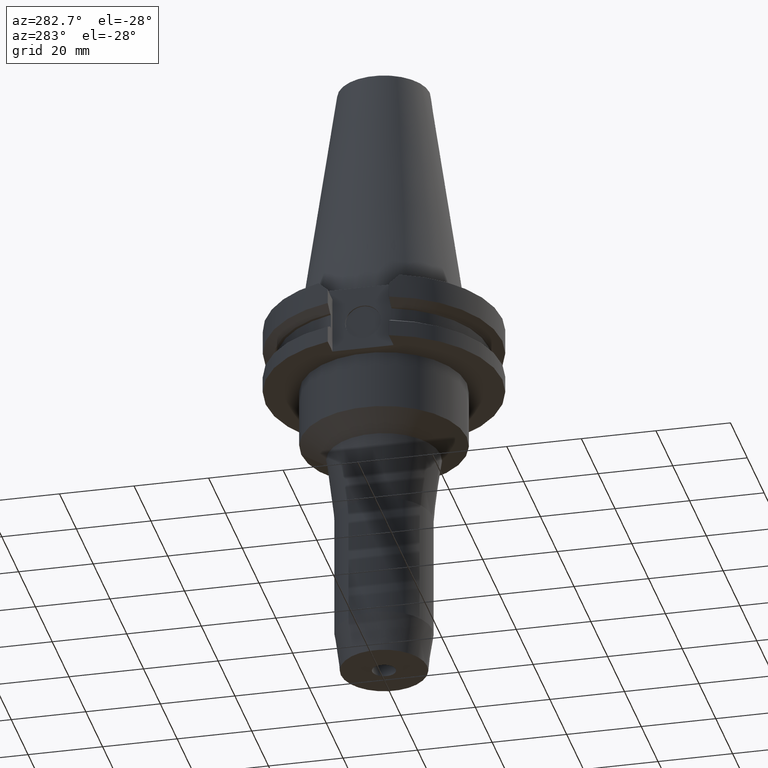
[diagram: clean part render]
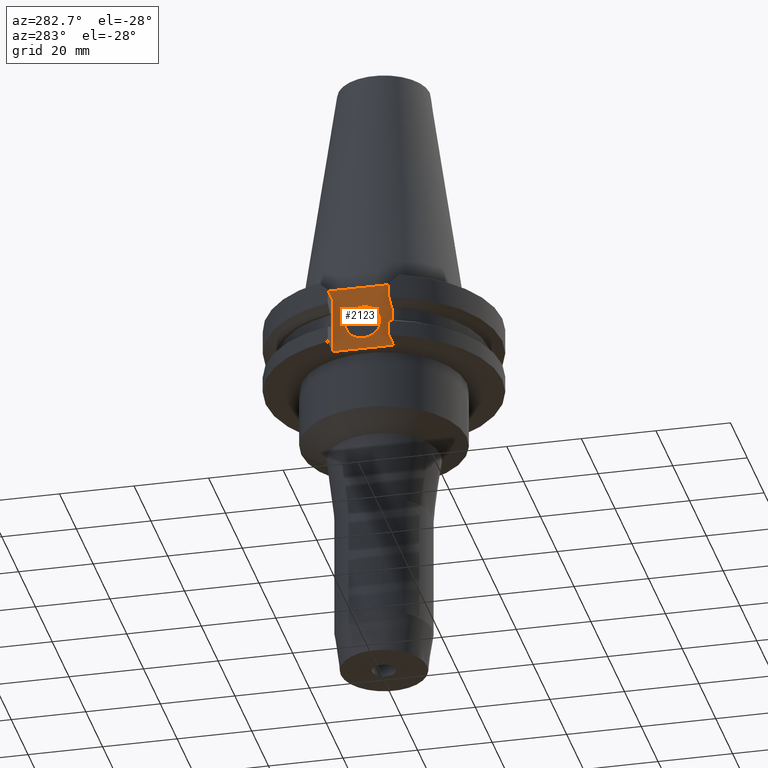
[diagram: same view with one face highlighted and labeled with its STEP entity id]
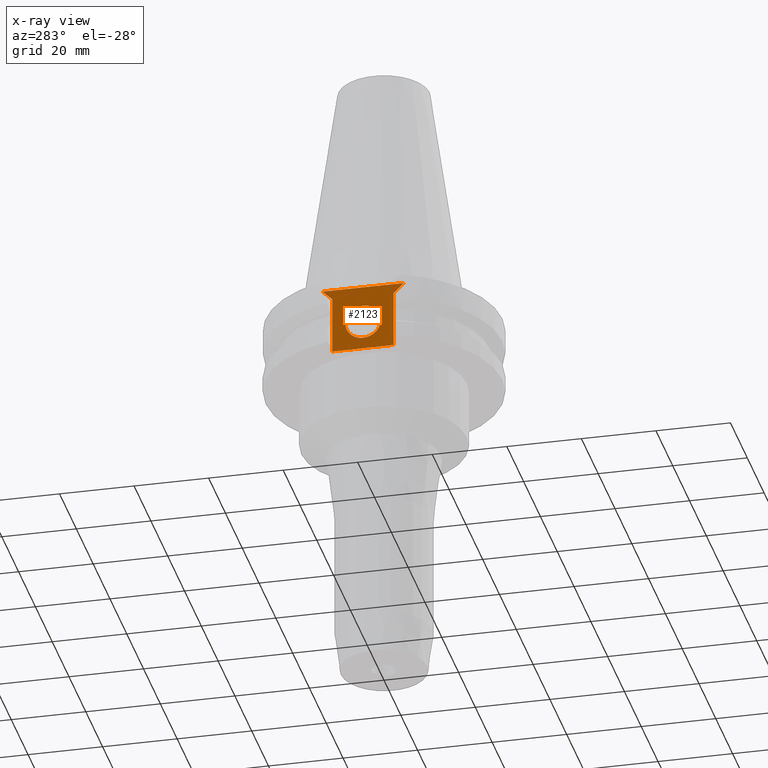
[diagram: x-ray of the same camera — body ghosted, the highlighted face saturated]
A machine part, auxiliary view. The second image highlights one B-rep face of the part: STEP entity #2123.
The next image is the same camera in x-ray: the body ghosted, the highlighted face saturated — about 0% of this face is hidden behind the body in this view.
In plain terms, the highlighted planar face has unit normal (1, 0, 0).
Its self-contained STEP definition (entity closure, byte-faithful):
#543=DIRECTION('',(0.E0,-1.E0,0.E0));
#544=VECTOR('',#543,1.638E1);
#545=CARTESIAN_POINT('',(-2.498E1,8.19E0,-1.905E1));
#546=LINE('',#545,#544);
#669=DIRECTION('',(0.E0,0.E0,1.E0));
#670=VECTOR('',#669,1.535E1);
#671=CARTESIAN_POINT('',(-2.498E1,-8.19E0,-1.905E1));
#672=LINE('',#671,#670);
#693=DIRECTION('',(0.E0,7.071067811865E-1,7.071067811865E-1));
#694=VECTOR('',#693,3.818376618407E0);
#695=CARTESIAN_POINT('',(-2.498E1,8.19E0,-3.7E0));
#696=LINE('',#695,#694);
#700=DIRECTION('',(0.E0,-1.E0,0.E0));
#701=VECTOR('',#700,2.178E1);
#702=CARTESIAN_POINT('',(-2.498E1,1.089E1,-1.E0));
#703=LINE('',#702,#701);
#707=DIRECTION('',(0.E0,7.071067811865E-1,-7.071067811865E-1));
#708=VECTOR('',#707,3.818376618407E0);
#709=CARTESIAN_POINT('',(-2.498E1,-1.089E1,-1.E0));
#710=LINE('',#709,#708);
#714=CARTESIAN_POINT('',(-2.498E1,0.E0,-1.118E1));
#715=DIRECTION('',(-1.E0,0.E0,0.E0));
#716=DIRECTION('',(0.E0,1.E0,0.E0));
#717=AXIS2_PLACEMENT_3D('',#714,#715,#716);
#722=CARTESIAN_POINT('',(-2.498E1,0.E0,-1.118E1));
#723=DIRECTION('',(-1.E0,0.E0,0.E0));
#724=DIRECTION('',(0.E0,-1.E0,0.E0));
#725=AXIS2_PLACEMENT_3D('',#722,#723,#724);
#761=DIRECTION('',(0.E0,0.E0,-1.E0));
#762=VECTOR('',#761,1.535E1);
#763=CARTESIAN_POINT('',(-2.498E1,8.19E0,-3.7E0));
#764=LINE('',#763,#762);
#1382=CARTESIAN_POINT('',(-2.498E1,8.19E0,-1.905E1));
#1383=VERTEX_POINT('',#1382);
#1384=CARTESIAN_POINT('',(-2.498E1,-8.19E0,-1.905E1));
#1385=VERTEX_POINT('',#1384);
#1422=CARTESIAN_POINT('',(-2.498E1,-8.19E0,-3.7E0));
#1423=VERTEX_POINT('',#1422);
#1435=CARTESIAN_POINT('',(-2.498E1,8.19E0,-3.7E0));
#1436=VERTEX_POINT('',#1435);
#1437=CARTESIAN_POINT('',(-2.498E1,1.089E1,-1.E0));
#1438=VERTEX_POINT('',#1437);
#1439=CARTESIAN_POINT('',(-2.498E1,-1.089E1,-1.E0));
#1440=VERTEX_POINT('',#1439);
#1441=CARTESIAN_POINT('',(-2.498E1,4.7625E0,-1.118E1));
#1442=CARTESIAN_POINT('',(-2.498E1,-4.7625E0,-1.118E1));
#1443=VERTEX_POINT('',#1441);
#1444=VERTEX_POINT('',#1442);
#2100=CARTESIAN_POINT('',(-2.498E1,0.E0,0.E0));
#2101=DIRECTION('',(1.E0,0.E0,0.E0));
#2102=DIRECTION('',(0.E0,0.E0,-1.E0));
#2103=AXIS2_PLACEMENT_3D('',#2100,#2101,#2102);
#2104=PLANE('',#2103);
#2105=ORIENTED_EDGE('',*,*,#1995,.F.);
#2107=ORIENTED_EDGE('',*,*,#2106,.F.);
#2109=ORIENTED_EDGE('',*,*,#2108,.T.);
#2111=ORIENTED_EDGE('',*,*,#2110,.T.);
#2113=ORIENTED_EDGE('',*,*,#2112,.T.);
#2114=ORIENTED_EDGE('',*,*,#2080,.F.);
#2115=EDGE_LOOP('',(#2105,#2107,#2109,#2111,#2113,#2114));
#2116=FACE_OUTER_BOUND('',#2115,.F.);
#2118=ORIENTED_EDGE('',*,*,#2117,.T.);
#2120=ORIENTED_EDGE('',*,*,#2119,.T.);
#2121=EDGE_LOOP('',(#2118,#2120));
#2122=FACE_BOUND('',#2121,.F.);
#718=CIRCLE('',#717,4.7625E0);
#726=CIRCLE('',#725,4.7625E0);
#1995=EDGE_CURVE('',#1383,#1385,#546,.T.);
#2080=EDGE_CURVE('',#1385,#1423,#672,.T.);
#2106=EDGE_CURVE('',#1436,#1383,#764,.T.);
#2108=EDGE_CURVE('',#1436,#1438,#696,.T.);
#2110=EDGE_CURVE('',#1438,#1440,#703,.T.);
#2112=EDGE_CURVE('',#1440,#1423,#710,.T.);
#2117=EDGE_CURVE('',#1443,#1444,#718,.T.);
#2119=EDGE_CURVE('',#1444,#1443,#726,.T.);
#2123=ADVANCED_FACE('',(#2116,#2122),#2104,.F.);